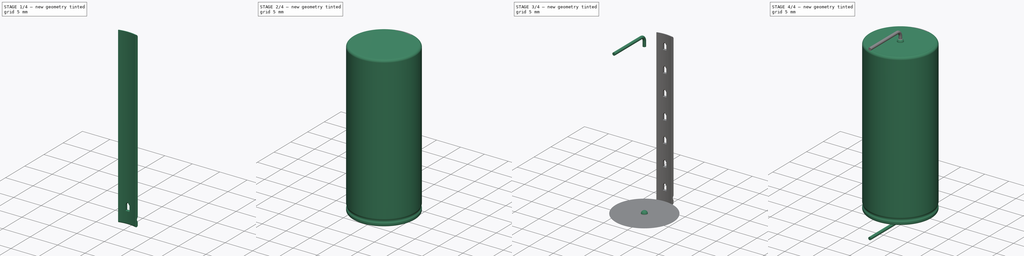
[diagram: build sequence overview — one tinted view per stage of 4, left to right]
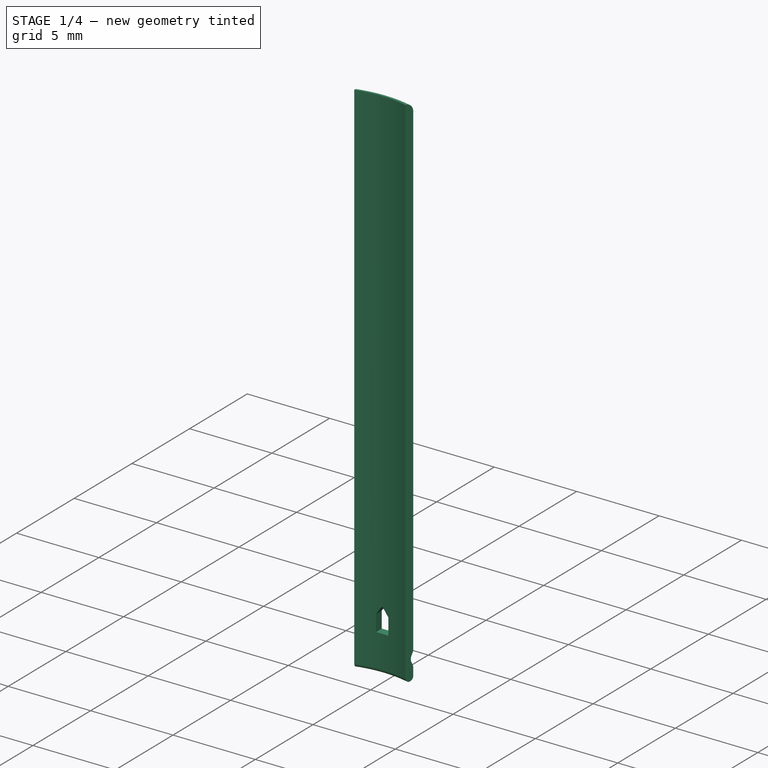
[diagram: stage 1 of 4 — iso view after this stage's code; geometry added in this stage tinted green]
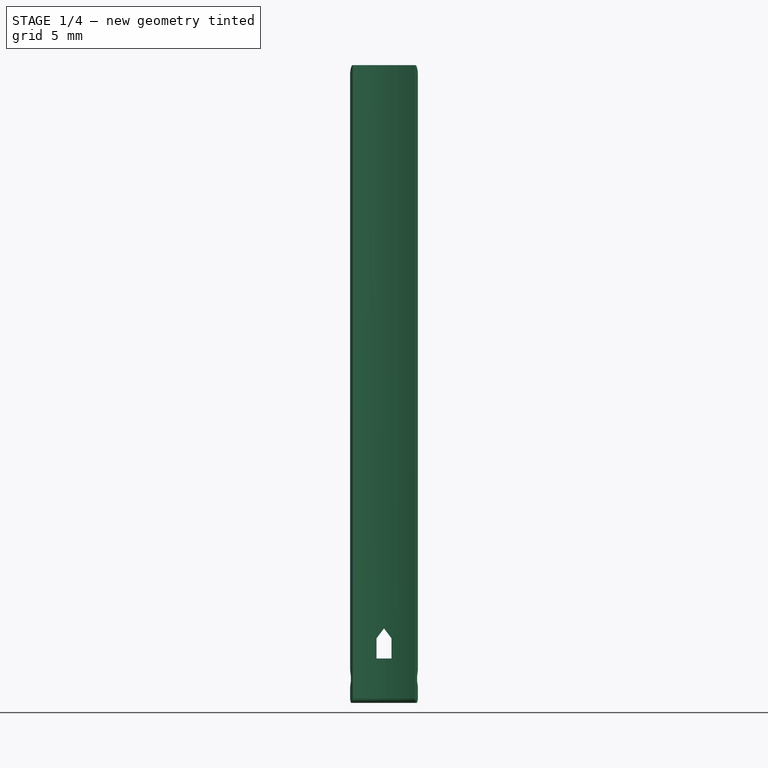
[diagram: stage 1 of 4 — front view after this stage's code; geometry added in this stage tinted green]
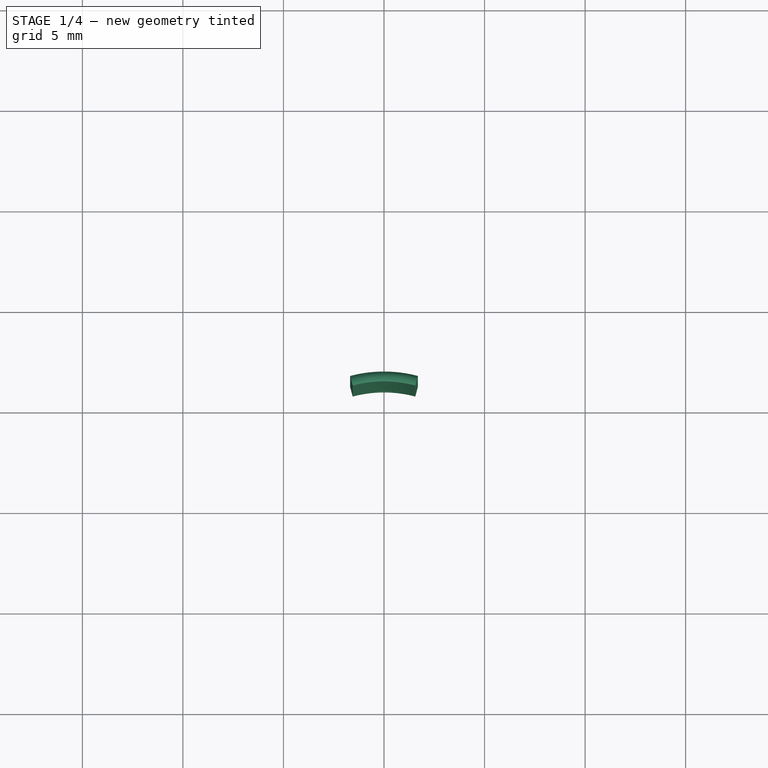
[diagram: stage 1 of 4 — top view after this stage's code; geometry added in this stage tinted green]
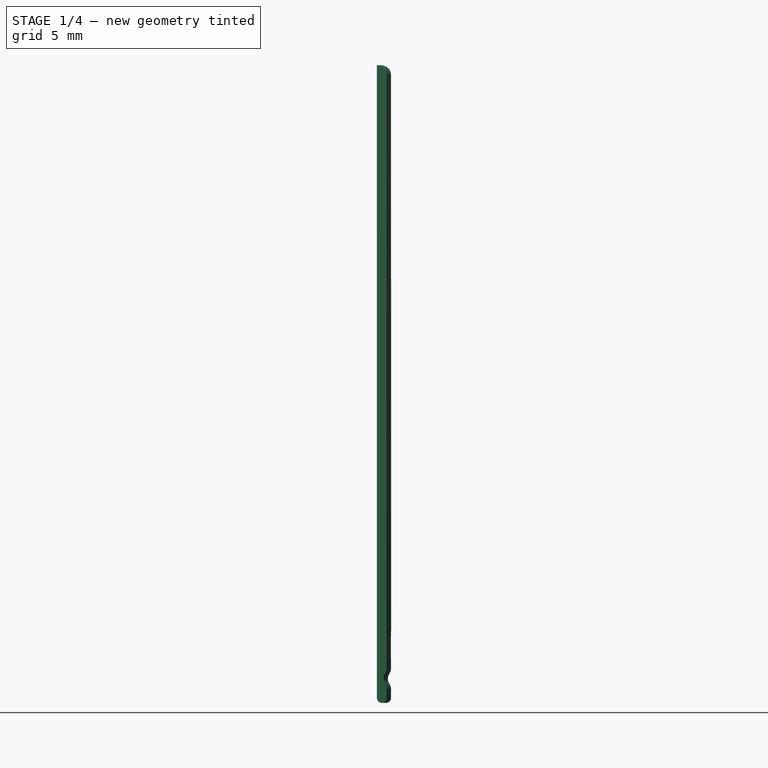
[diagram: stage 1 of 4 — right view after this stage's code; geometry added in this stage tinted green]
FCSTD DOCUMENT  (FreeCAD 0.19R16945 (Git))
Label: Vishay_516D_D13_L31.5_P35.56_d0.6_LL2.6
License: All rights reserved
LicenseURL: http://en.wikipedia.org/wiki/All_rights_reserved
objects: Sketcher::SketchObject×6, PartDesign::Body×5, PartDesign::Revolution×2, Spreadsheet::Sheet×1, PartDesign::AdditivePipe×1, PartDesign::FeatureBase×1, PartDesign::AdditiveSphere×1, PartDesign::ShapeBinder×1, PartDesign::Pad×1, PartDesign::Pocket×1, PartDesign::LinearPattern×1, Part::MultiFuse×1
note: 27 computed .brp shape members not serialized (recipe doc carries the construction recipe); baked Part::Feature solids carry a one-line shape summary decoded from their .brp

FEATURE [PartDesign::Body] Body  label="Housing"
  Group = -> [Sketch,Revolution]
  Origin = -> Origin
  Tip = -> Revolution
FEATURE [Spreadsheet::Sheet] Spreadsheet
  cells = A2=diameter; B2(diameter)==13mm; A3=height; B3(height)==31.5mm; G3=times 2.54mm p; D4=case; E4=pitch; G4==floor(B3 / 2.54mm) + 2; A5=leaddiameter; B5(leaddiameter)==0.6mm; A6=leadpitch; B6(leadpitch)==G4 * 2.54mm; D6=5; E6==5 * 2.54; A7=leadextralength; B7(leadextralength)==2.6mm; E7==6 * 2.54; E8==7 * 2.54; E9==8 * 2.54; E10==9 * 2.54; E11==10 * 2.54; E12==11 * 2.54; E13==12 * 2.54; E14==13 * 2.54
FEATURE [Sketcher::SketchObject] Sketch005
  AttachmentOffset = pos=(0,0,0) rot=(0,1,0;0.261799rad)
  MapMode = 5
  Placement = pos=(0,0,0) rot=(0.476905,0.621515,0.621515;2.25159rad)
  Support = -> [YZ_Plane004]
  expr: Constraints[19] = Sketch.Constraints[25]
  expr: Constraints[15] = Sketch.Constraints[20] + 0.01mm
  expr: Constraints[18] = Sketch.Constraints[24]
  expr: Constraints[17] = Sketch.Constraints[23]
  expr: Constraints[12] = Sketch.Constraints[14]
  expr: Constraints[13] = Sketch.Constraints[15]
  expr: Constraints[6] = Sketch.Constraints[8]
  expr: Constraints[11] = Sketch.Constraints[13]
  expr: Constraints[5] = Sketch.Constraints[7] + 0.01mm
  sketch-geometry (9):
    g0: LineSegment StartX=6.51 StartY=31.01 StartZ=0 EndX=6.51 EndY=1.52394 EndZ=0
    g1: LineSegment StartX=6.51 StartY=0.476059 StartZ=0 EndX=6.51 EndY=0.0435257 EndZ=0
    g2: ArcOfCircle CenterX=6.01 CenterY=31.01 CenterZ=0 NormalX=0 NormalY=0 NormalZ=1 AngleXU=0 Radius=0.5 StartAngle=1.8e-15 EndAngle=1.5708
    g3: ArcOfCircle CenterX=6.81 CenterY=1 CenterZ=0 NormalX=0 NormalY=0 NormalZ=1 AngleXU=0 Radius=0.456302 StartAngle=2.56176 EndAngle=3.72142
    g4: ArcOfCircle CenterX=6.01 CenterY=1.52394 CenterZ=0 NormalX=0 NormalY=0 NormalZ=1 AngleXU=0 Radius=0.5 StartAngle=5.70335 EndAngle=6.28319
    g5: ArcOfCircle CenterX=6.01 CenterY=0.476059 CenterZ=0 NormalX=0 NormalY=0 NormalZ=1 AngleXU=0 Radius=0.5 StartAngle=0 EndAngle=0.579831
    g6: LineSegment StartX=0 StartY=31.51 StartZ=0 EndX=0 EndY=0 EndZ=0
    g7: ArcOfCircle CenterX=6.26 CenterY=0.0435257 CenterZ=0 NormalX=0 NormalY=0 NormalZ=1 AngleXU=0 Radius=0.25 StartAngle=3.14159 EndAngle=6.28319
    g8: LineSegment StartX=6.01 StartY=0.0435257 StartZ=0 EndX=6.01 EndY=31.51 EndZ=0
  constraints (25):
    c: PointOnObject(g6,g-2)
    c: Vertical(g0)
    c: Vertical(g1)
    c: Vertical(g1,g0)
    c: Tangent(g0,g2) = 1.5708
    c: DistanceX(g6,g0) = 6.51
    c: DistanceX(g2,g0) = 0.5
    c: Tangent(g3,g4) = 1.5708
    c: Tangent(g0,g4) = 1.5708
    c: Tangent(g1,g5) = 1.5708
    c: Tangent(g3,g5) = 1.5708
    c: DistanceX(g4,g0) = 0.5
    c: DistanceX(g5,g1) = 0.5
    c: DistanceY(g3,g3) = 0.5
    c: Coincident(g6,g-1)
    c: DistanceY(g6,g6) = 31.51
    c: Tangent(g1,g7) = 1.5708
    c: DistanceX(g7,g1) = 0.25
    c: DistanceY(g6,g3) = 1
    c: DistanceX(g1,g3) = 0.3
    c: Coincident(g8,g7)
    c: Coincident(g8,g2)
    c: Vertical(g8)
    c: Vertical(g2,g2)
    c: Horizontal(g2,g6)
FEATURE [PartDesign::Revolution] Revolution001
  Angle = 30
  Axis = (-2e-16,3e-16,1)
  Base = (0,0,0)
  Placement = pos=(0,0,0) rot=(0.57735,0.57735,0.57735;2.0944rad)
  Profile = -> Sketch005
  ReferenceAxis = -> Sketch005 [V_Axis]
  Reversed = true
FEATURE [PartDesign::Body] Body008  label="NegativeCap"
  Group = -> [Sphere,ShapeBinder,Sketch012,Pad]
  Origin = -> Origin008
  Placement = pos=(0,0,31.5) rot=(0,0,-1;1.5708rad)
  Tip = -> Pad
  expr: Placement.Base.z = Spreadsheet.height
FEATURE [Sketcher::SketchObject] Sketch013
  MapMode = 5
  Placement = pos=(0,0,0) rot=(1,0,0;1.5708rad)
  Support = -> [XZ_Plane004]
  sketch-geometry (5):
    g0: LineSegment StartX=0.375 StartY=2 StartZ=0 EndX=-0.375 EndY=2 EndZ=0
    g1: LineSegment StartX=-0.375 StartY=2 StartZ=0 EndX=-0.375 EndY=3 EndZ=0
    g2: LineSegment StartX=-0.375 StartY=3 StartZ=0 EndX=0 EndY=3.5 EndZ=0
    g3: LineSegment StartX=0 StartY=3.5 StartZ=0 EndX=0.375 EndY=3 EndZ=0
    g4: LineSegment StartX=0.375 StartY=3 StartZ=0 EndX=0.375 EndY=2 EndZ=0
  constraints (14):
    c: Coincident(g0,g1)
    c: Vertical(g1)
    c: Coincident(g1,g2)
    c: Coincident(g2,g3)
    c: Coincident(g3,g4)
    c: Coincident(g4,g0)
    c: Symmetric(g0,g0,g-2)
    c: Vertical(g4)
    c: Equal(g4,g1)
    c: PointOnObject(g2,g-2)
    c: DistanceY(g4,g4) = 1
    c: DistanceY(g3,g2) = 0.5
    c: DistanceY(g-1,g0) = 2
    c: DistanceX(g0,g0) = 0.75
FEATURE [PartDesign::Pocket] Pocket
  BaseFeature = -> Revolution001
  Length = 5
  Length2 = 100
  Placement = pos=(0,0,0) rot=(0.57735,0.57735,0.57735;2.0944rad)
  Profile = -> Sketch013
  Type = 1
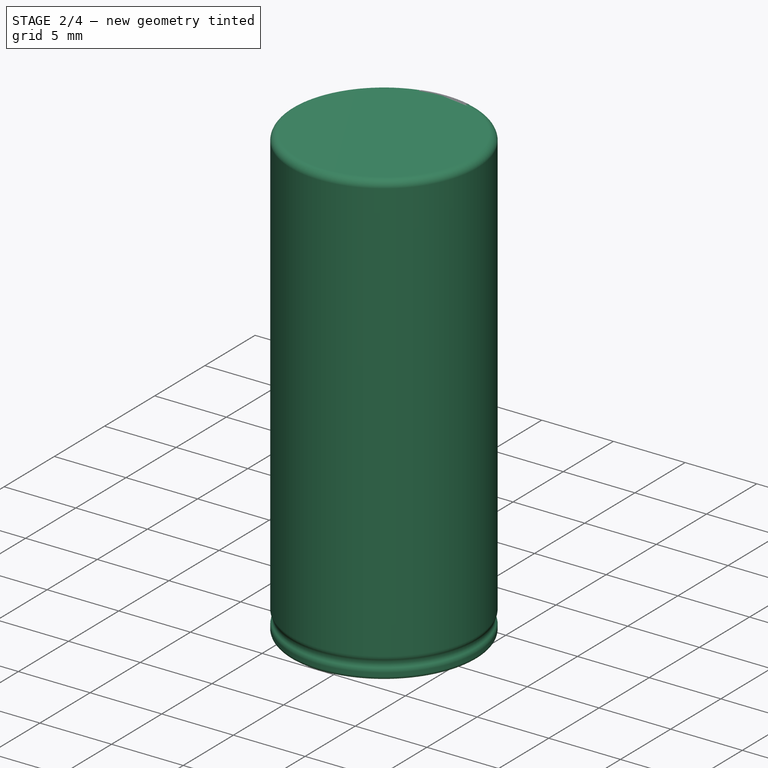
[diagram: stage 2 of 4 — iso view after this stage's code; geometry added in this stage tinted green]
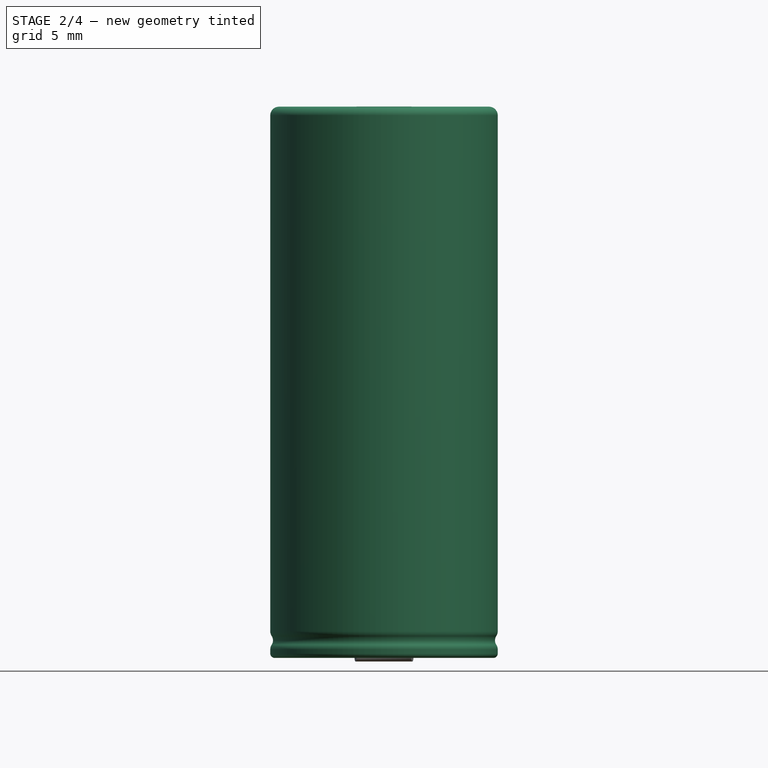
[diagram: stage 2 of 4 — front view after this stage's code; geometry added in this stage tinted green]
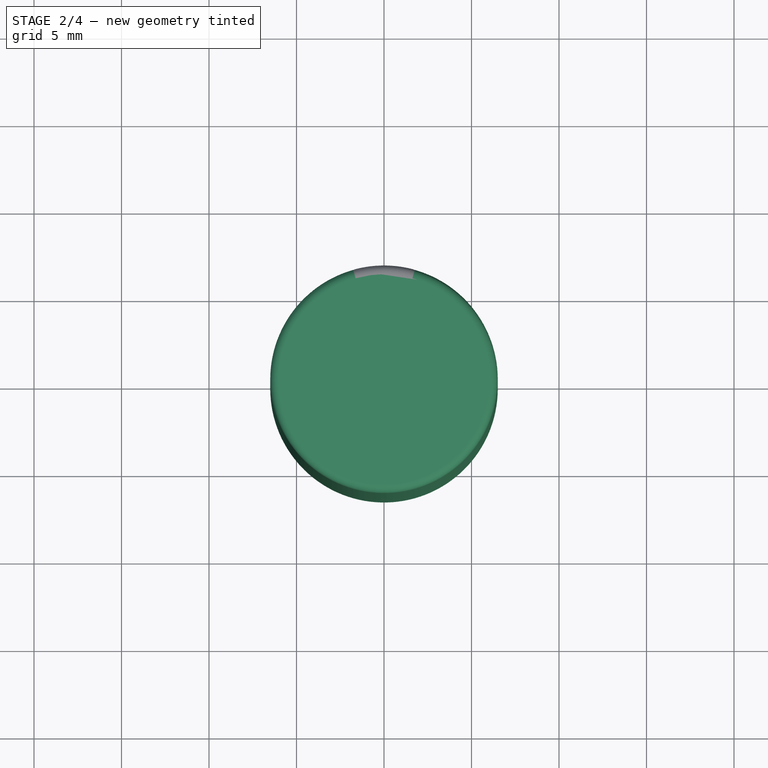
[diagram: stage 2 of 4 — top view after this stage's code; geometry added in this stage tinted green]
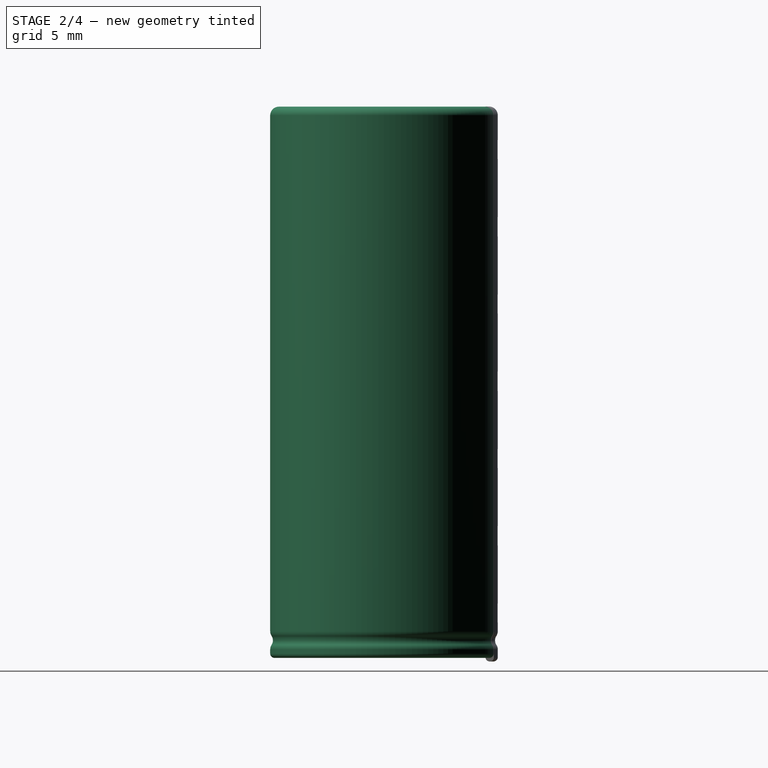
[diagram: stage 2 of 4 — right view after this stage's code; geometry added in this stage tinted green]
FEATURE [Sketcher::SketchObject] Sketch
  MapMode = 5
  Placement = pos=(0,0,0) rot=(1,0,0;1.5708rad)
  Support = -> [XZ_Plane]
  expr: Constraints[7] = Spreadsheet.diameter / 2
  expr: Constraints[20] = Spreadsheet.height
  sketch-geometry (10):
    g0: LineSegment StartX=0 StartY=31.5 StartZ=0 EndX=6 EndY=31.5 EndZ=0
    g1: LineSegment StartX=6.5 StartY=31 StartZ=0 EndX=6.5 EndY=1.52394 EndZ=0
    g2: LineSegment StartX=6.5 StartY=0.476059 StartZ=0 EndX=6.5 EndY=0.25 EndZ=0
    g3: ArcOfCircle CenterX=6 CenterY=31 CenterZ=0 NormalX=0 NormalY=0 NormalZ=1 AngleXU=0 Radius=0.5 StartAngle=-2.4967e-12 EndAngle=1.5708
    g4: ArcOfCircle CenterX=6.8 CenterY=1 CenterZ=0 NormalX=0 NormalY=0 NormalZ=1 AngleXU=0 Radius=0.456302 StartAngle=2.56176 EndAngle=3.72142
    g5: ArcOfCircle CenterX=6 CenterY=1.52394 CenterZ=0 NormalX=0 NormalY=0 NormalZ=1 AngleXU=0 Radius=0.5 StartAngle=5.70335 EndAngle=6.28319
    g6: ArcOfCircle CenterX=6 CenterY=0.476059 CenterZ=0 NormalX=0 NormalY=0 NormalZ=1 AngleXU=0 Radius=0.5 StartAngle=0 EndAngle=0.579831
    g7: LineSegment StartX=0 StartY=31.5 StartZ=0 EndX=0 EndY=0 EndZ=0
    g8: LineSegment StartX=0 StartY=0 StartZ=0 EndX=6.25 EndY=0 EndZ=0
    g9: ArcOfCircle CenterX=6.25 CenterY=0.25 CenterZ=0 NormalX=0 NormalY=0 NormalZ=1 AngleXU=0 Radius=0.25 StartAngle=4.71239 EndAngle=6.28319
  constraints (26):
    c: PointOnObject(g0,g-2)
    c: Horizontal(g0)
    c: Vertical(g1)
    c: Vertical(g2)
    c: Vertical(g2,g1)
    c: Tangent(g0,g3) = 1.5708
    c: Tangent(g1,g3) = 1.5708
    c: DistanceX(g0,g1) = 6.5
    c: DistanceX(g3,g1) = 0.5
    c: Tangent(g4,g5) = 1.5708
    c: Tangent(g1,g5) = 1.5708
    c: Tangent(g2,g6) = 1.5708
    c: Tangent(g4,g6) = 1.5708
    c: DistanceX(g5,g1) = 0.5
    c: DistanceX(g6,g2) = 0.5
    c: DistanceY(g4,g4) = 0.5
    c: Coincident(g0,g7)
    c: Coincident(g7,g8)
    c: Horizontal(g8)
    c: Coincident(g7,g-1)
    c: DistanceY(g7,g7) = 31.5
    c: Tangent(g2,g9) = 1.5708
    c: Tangent(g8,g9) = -1.5708
    c: DistanceX(g9,g2) = 0.25
    c: DistanceY(g7,g4) = 1
    c: DistanceX(g2,g4) = 0.3
FEATURE [PartDesign::Revolution] Revolution
  Angle = 360
  Axis = (0,-2e-16,1)
  Base = (0,0,0)
  Placement = pos=(0,0,0) rot=(1,0,0;1.5708rad)
  Profile = -> Sketch
  ReferenceAxis = -> Sketch [V_Axis]
  Reversed = true
FEATURE [PartDesign::LinearPattern] LinearPattern
  BaseFeature = -> Pocket
  Direction = -> Z_Axis004
  Length = 26.5
  Occurrences = 7
  Originals = -> [Pocket]
  Placement = pos=(0,0,0) rot=(0.57735,0.57735,0.57735;2.0944rad)
  expr: Occurrences = floor(Spreadsheet.height / 4mm)
  expr: Length = Spreadsheet.height - 5mm
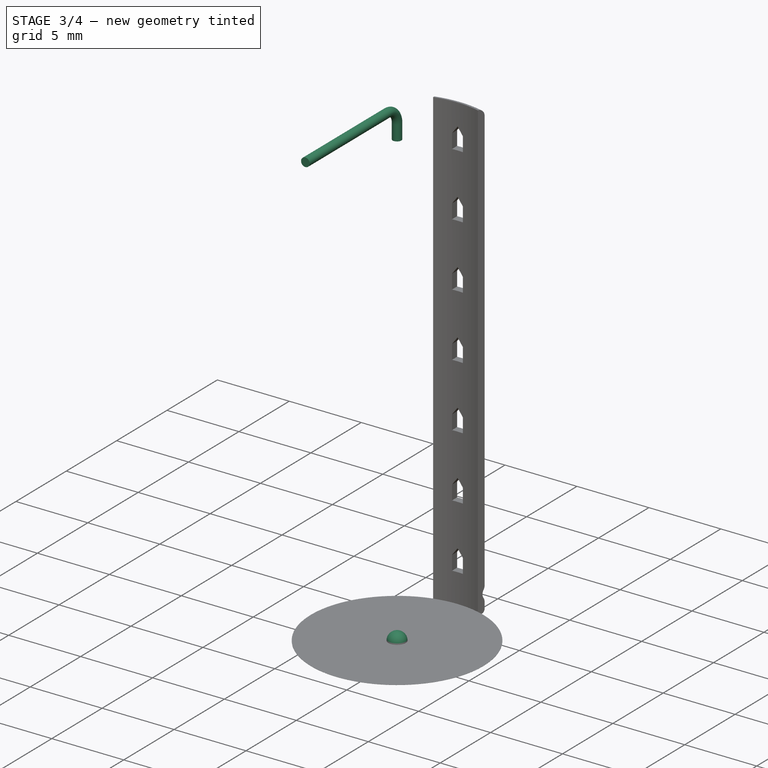
[diagram: stage 3 of 4 — iso view after this stage's code; geometry added in this stage tinted green]
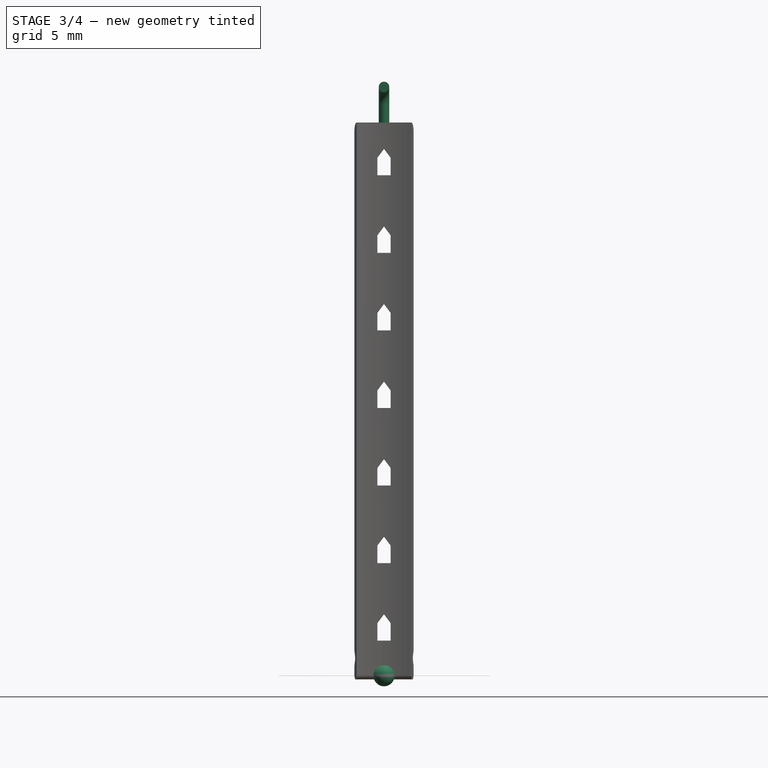
[diagram: stage 3 of 4 — front view after this stage's code; geometry added in this stage tinted green]
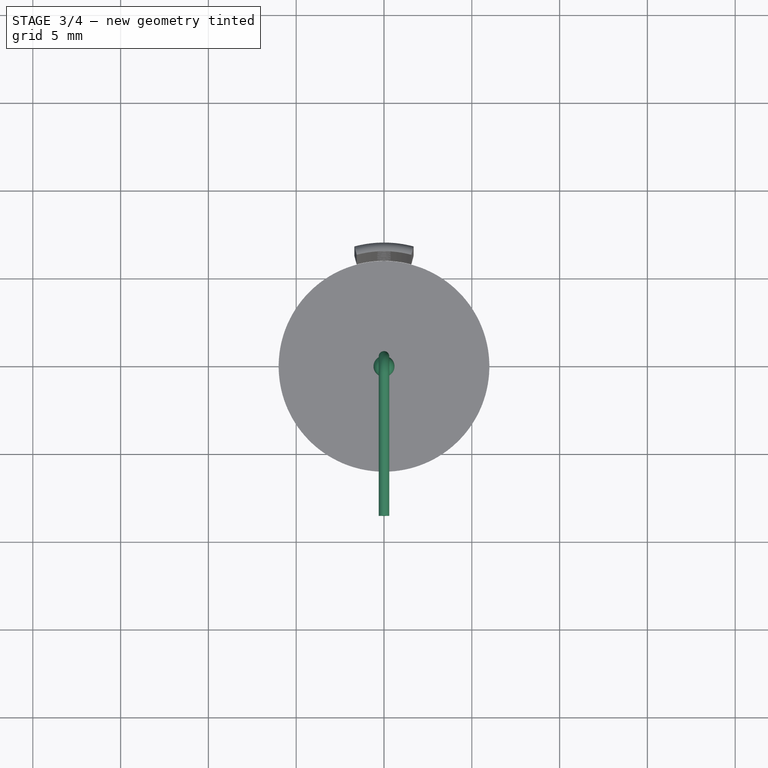
[diagram: stage 3 of 4 — top view after this stage's code; geometry added in this stage tinted green]
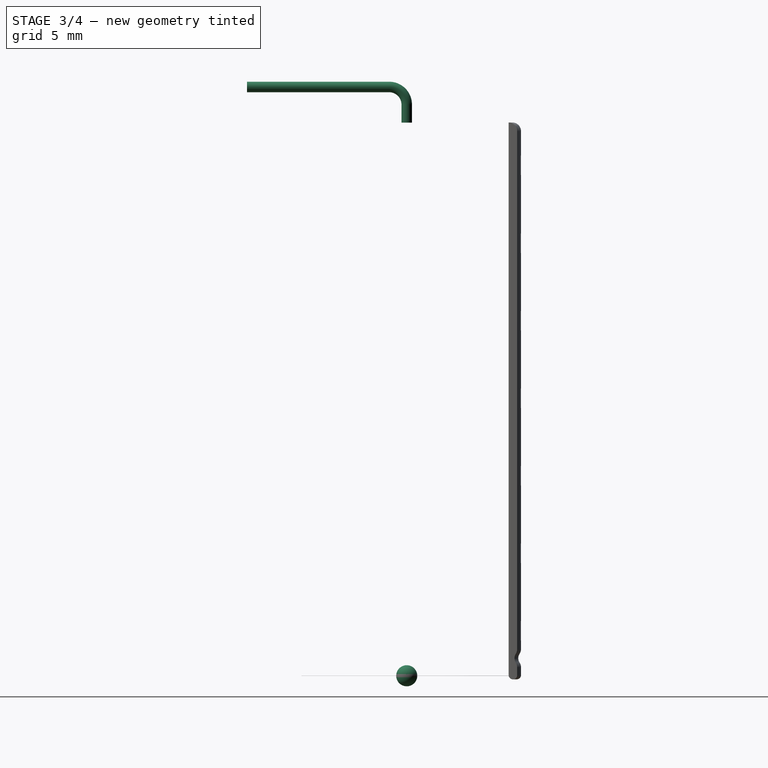
[diagram: stage 3 of 4 — right view after this stage's code; geometry added in this stage tinted green]
FEATURE [Sketcher::SketchObject] Sketch010
  AttachmentOffset = pos=(0,0,0) rot=(0,1,0;-1.5708rad)
  MapMode = 5
  Placement = pos=(0,0,0) rot=(-0.57735,0.57735,0.57735;4.18879rad)
  Support = -> [XZ_Plane006]
  expr: Constraints[8] = Spreadsheet.diameter / 2 + Spreadsheet.leadextralength
  expr: Constraints[7] = (Spreadsheet.leadpitch - Spreadsheet.height) / 2
  expr: Constraints[3] = Spreadsheet.height
  sketch-geometry (3):
    g0: LineSegment StartX=0 StartY=31.5 StartZ=0 EndX=0 EndY=32.53 EndZ=0
    g1: LineSegment StartX=1 StartY=33.53 StartZ=0 EndX=9.1 EndY=33.53 EndZ=0
    g2: ArcOfCircle CenterX=1 CenterY=32.53 CenterZ=0 NormalX=0 NormalY=0 NormalZ=1 AngleXU=0 Radius=1 StartAngle=1.5708 EndAngle=3.14159
  constraints (9):
    c: PointOnObject(g0,g-2)
    c: Horizontal(g1)
    c: Vertical(g0)
    c: DistanceY(g-1,g0) = 31.5
    c: Tangent(g0,g2) = 1.5708
    c: Tangent(g1,g2) = 1.5708
    c: Radius(g2) = 1
    c: DistanceY(g0,g1) = 2.03
    c: DistanceX(g0,g1) = 9.1
FEATURE [Sketcher::SketchObject] Sketch011
  AttachmentOffset = pos=(0,0,31.5) rot=(0,0,1;0rad)
  MapMode = 5
  Placement = pos=(0,0,31.5) rot=(0,0,1;0rad)
  Support = -> [XY_Plane006]
  expr: AttachmentOffset.Base.z = Spreadsheet.height
  expr: Constraints[1] = Spreadsheet.leaddiameter / 2
  sketch-geometry (1):
    g0: Circle CenterX=0 CenterY=0 CenterZ=0 NormalX=0 NormalY=0 NormalZ=1 AngleXU=0 Radius=0.3
  constraints (2):
    c: Coincident(g0,g-1)
    c: Radius(g0) = 0.3
FEATURE [PartDesign::AdditivePipe] AdditivePipe
  AuxilleryCurvelinear = true
  AuxillerySpineTangent = false
  Binormal = (0,0,0)
  Mode = 0
  Profile = -> Sketch011
  Spine = -> Sketch010
  SpineTangent = false
  Transformation = 0
  Transition = 0
FEATURE [PartDesign::Body] Body007  label="LeadClone"
  BaseFeature = -> Body006
  Group = -> [Clone]
  Origin = -> Origin007
  Placement = pos=(0,0,31.5) rot=(0,1,0;3.14159rad)
  Tip = -> Clone
  expr: Placement.Base.z = Spreadsheet.height
FEATURE [PartDesign::AdditiveSphere] Sphere
  Angle1 = -90
  Angle2 = 90
  Angle3 = 360
  AttacherType = Attacher::AttachEngine3D
  Radius = 0.6
  expr: Radius = Spreadsheet.leaddiameter
FEATURE [PartDesign::ShapeBinder] ShapeBinder
  Placement = pos=(3.9e-15,6e-16,-31.5) rot=(0.57735,0.57735,0.57735;2.0944rad)
  Support = -> [Revolution]
  TraceSupport = true
FEATURE [Sketcher::SketchObject] Sketch012
  ExternalGeometry = -> [ShapeBinder]
  MapMode = 5
  Placement = pos=(1.97e-14,-1.2e-15,-7.1e-15) rot=(0,0,-1;1.5708rad)
  Support = -> [ShapeBinder]
  sketch-geometry (1):
    g0: Circle CenterX=0 CenterY=0 CenterZ=0 NormalX=0 NormalY=0 NormalZ=1 AngleXU=0 Radius=6
  constraints (2):
    c: Coincident(g0,g-1)
    c: Equal(g0,g-3)
FEATURE [PartDesign::Pad] Pad
  BaseFeature = -> Sphere
  Length = 0.01
  Length2 = 100
  Profile = -> Sketch012
  Type = 0
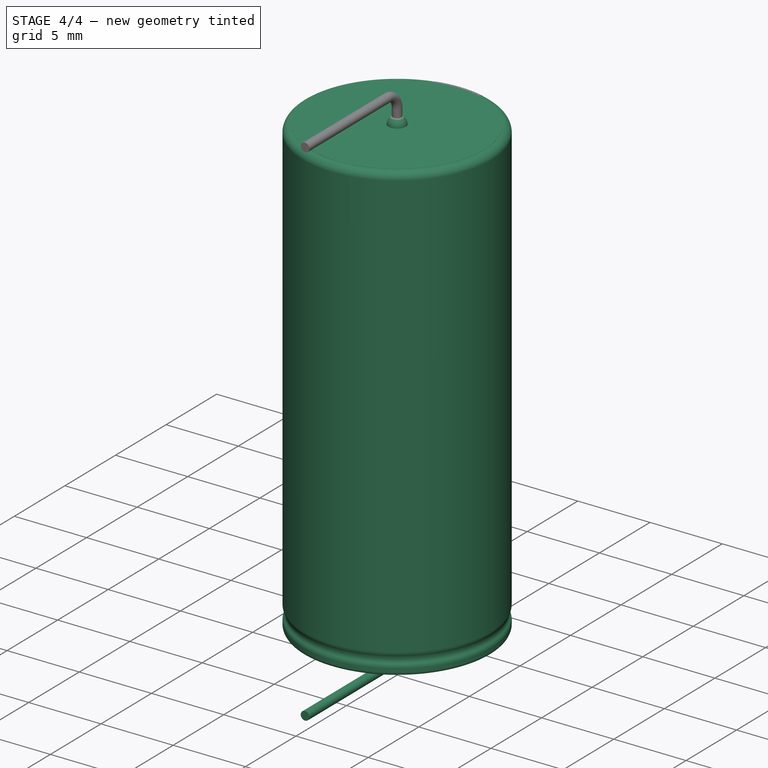
[diagram: stage 4 of 4 — iso view after this stage's code; geometry added in this stage tinted green]
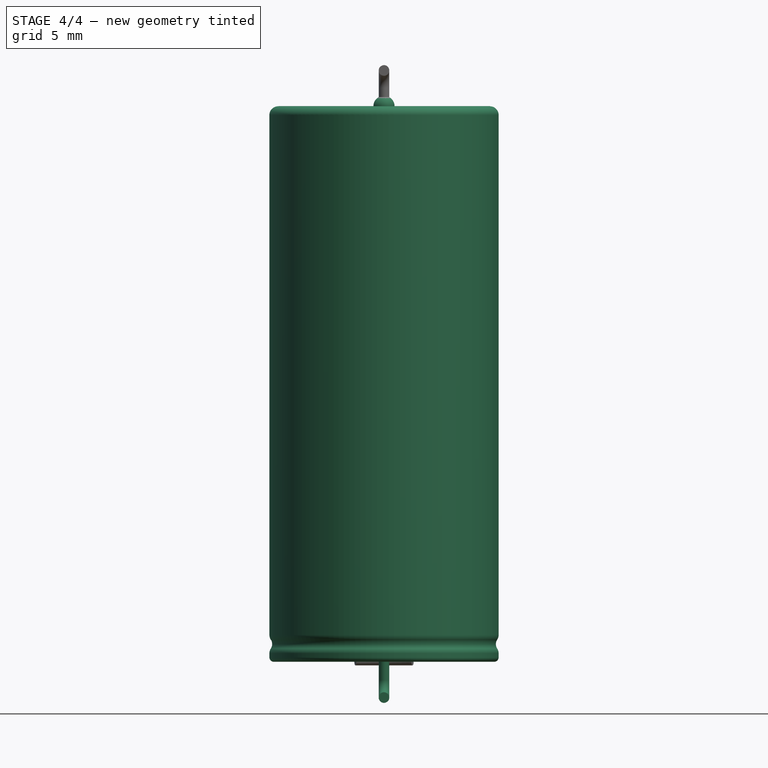
[diagram: stage 4 of 4 — front view after this stage's code; geometry added in this stage tinted green]
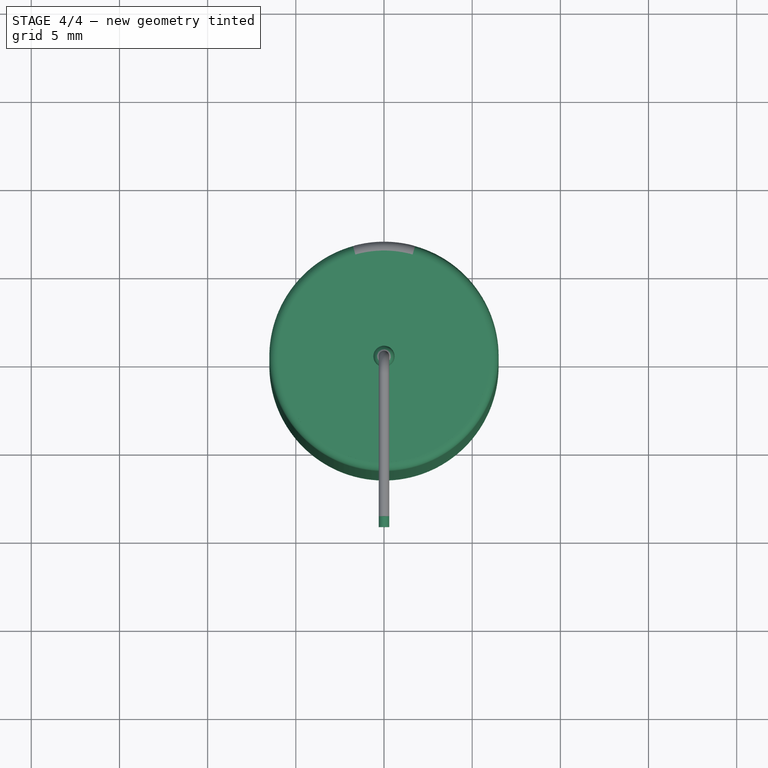
[diagram: stage 4 of 4 — top view after this stage's code; geometry added in this stage tinted green]
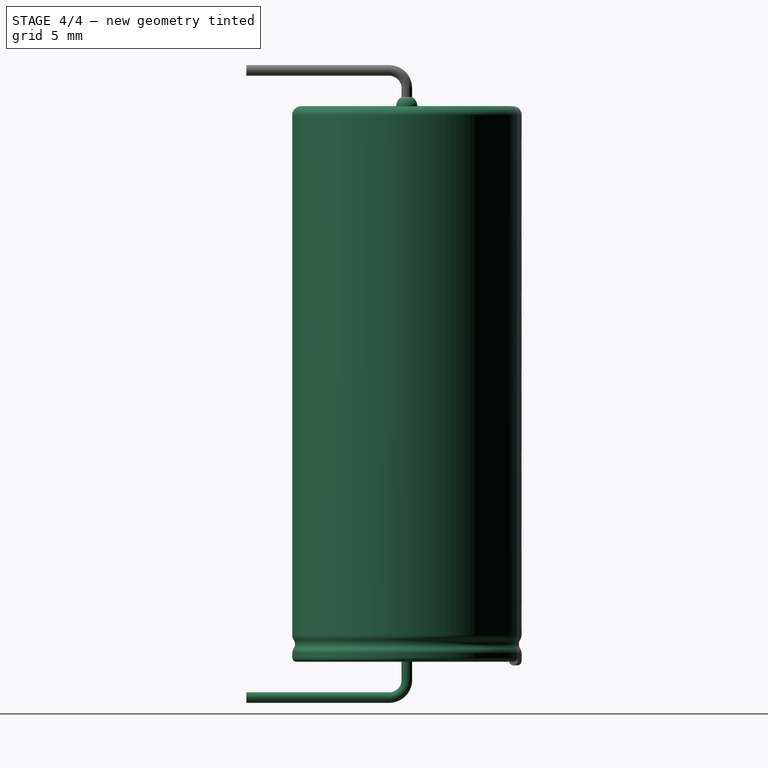
[diagram: stage 4 of 4 — right view after this stage's code; geometry added in this stage tinted green]
FEATURE [PartDesign::Body] Body006  label="Lead"
  Group = -> [Sketch010,Sketch011,AdditivePipe]
  Origin = -> Origin006
  Tip = -> AdditivePipe
FEATURE [PartDesign::FeatureBase] Clone
  BaseFeature = -> Body006
FEATURE [PartDesign::Body] Body004  label="PolarityMarking"
  Group = -> [Sketch005,Revolution001,Sketch013,Pocket,LinearPattern]
  Origin = -> Origin004
  Tip = -> LinearPattern
FEATURE [Part::MultiFuse] Fusion  label="Vishay_516D_D13_L31.5_P35.56_d0.6_LL2.6"
  Shapes = -> [Body008,Body007,Body006,Body004,Body]
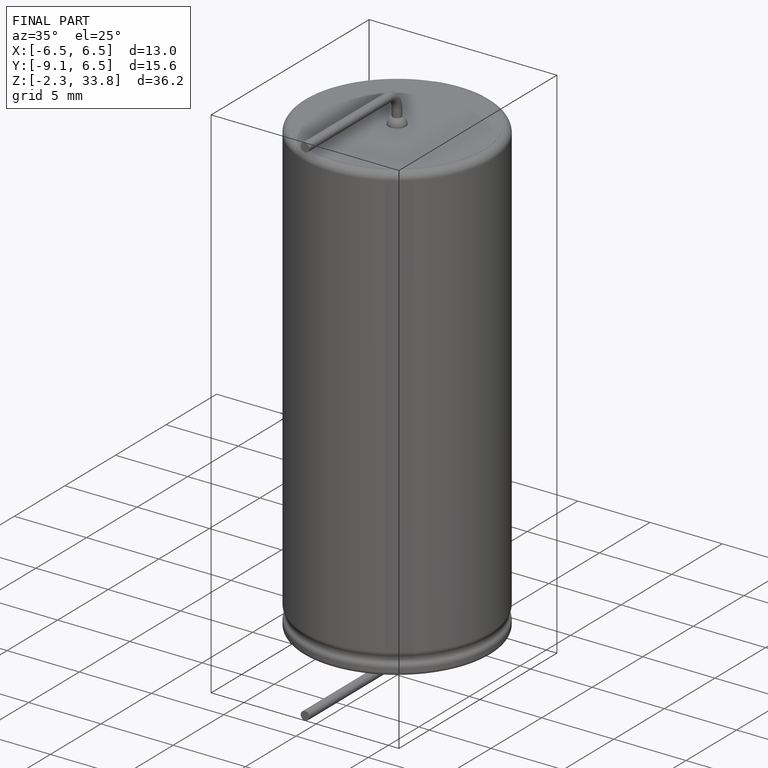
[diagram: finished part — iso view with bounding-box wireframe]
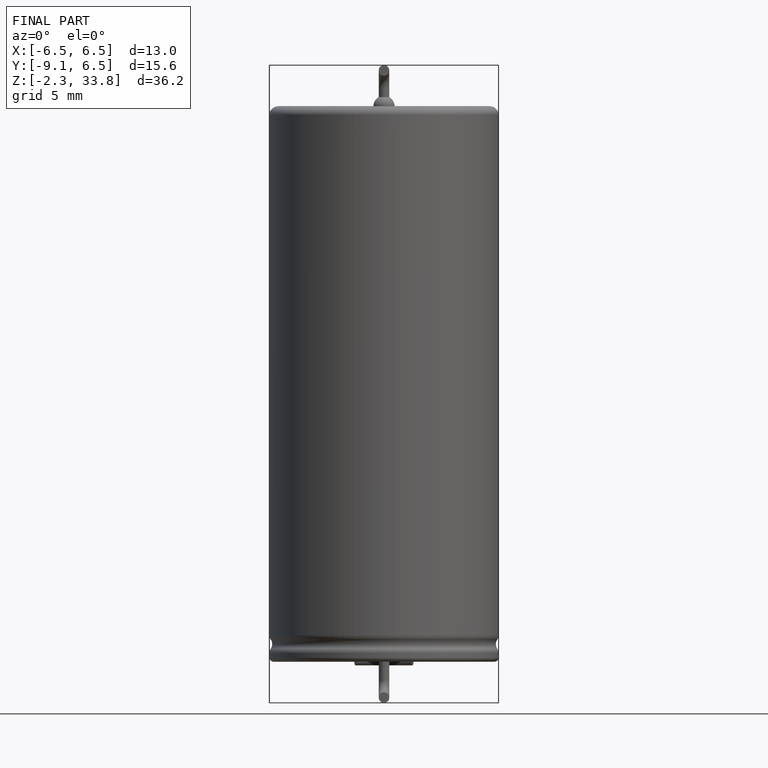
[diagram: finished part — front view with bounding-box wireframe]
